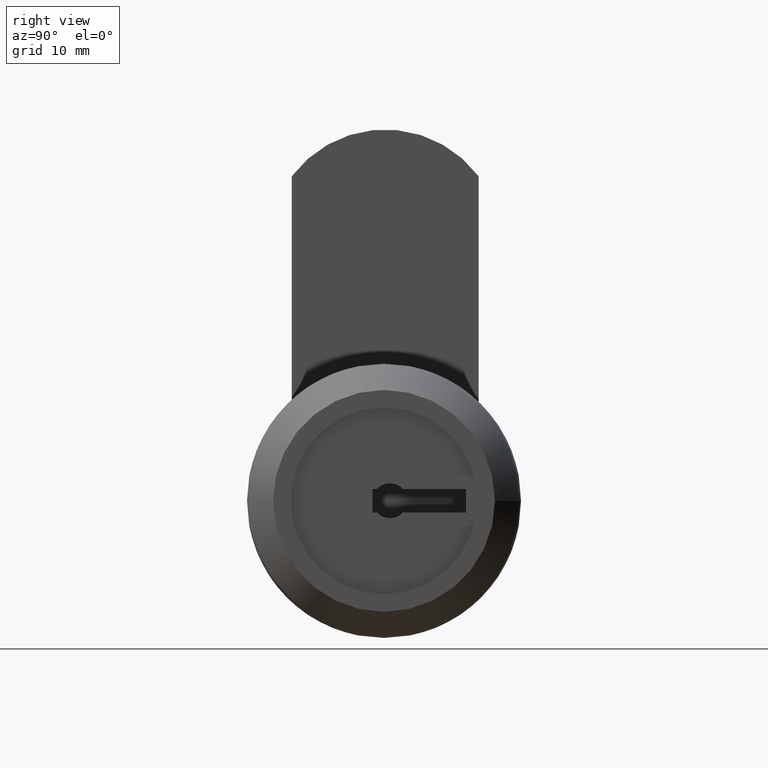
[diagram: clean part render]
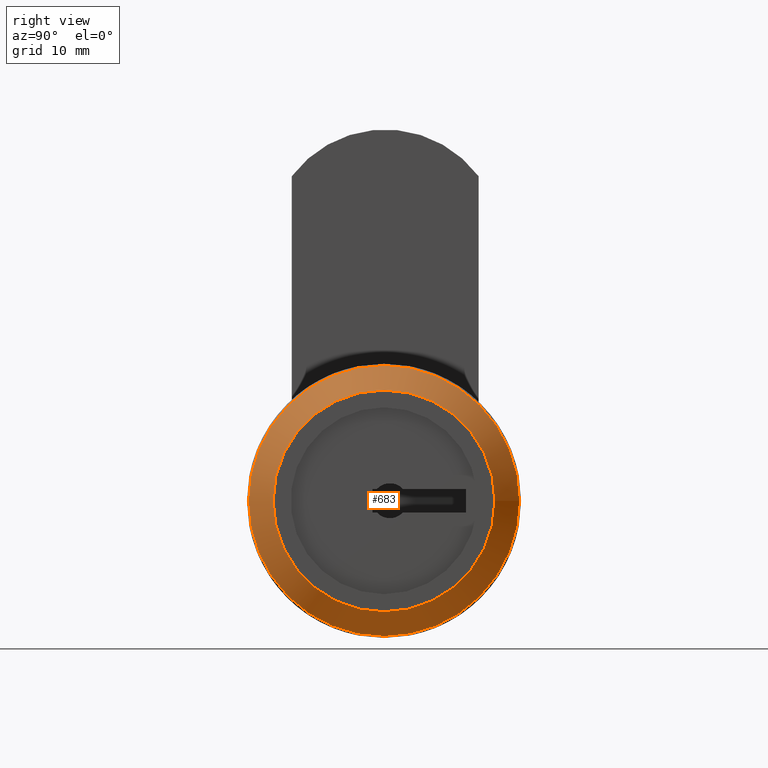
[diagram: same view with one face highlighted and labeled with its STEP entity id]
A machine part, right view. The second image highlights one B-rep face of the part: STEP entity #683.
In plain terms, the highlighted face is a freeform B-spline surface patch.
Its self-contained STEP definition (entity closure, byte-faithful):
#587=CARTESIAN_POINT('',(0.0,9.500000000000028,0.0));
#588=VERTEX_POINT('',#587);
#589=CARTESIAN_POINT('',(0.0,-9.500000000000028,0.0));
#590=VERTEX_POINT('',#589);
#591=CARTESIAN_POINT('',(0.0,0.0,0.0));
#592=DIRECTION('',(1.0,0.0,0.0));
#593=DIRECTION('',(0.0,1.0,0.0));
#594=AXIS2_PLACEMENT_3D('',#591,#592,#593);
#595=CIRCLE('',#594,9.500000000000028);
#596=EDGE_CURVE('',#588,#590,#595,.T.);
#598=CARTESIAN_POINT('',(0.0,0.0,0.0));
#599=DIRECTION('',(1.0,0.0,0.0));
#600=DIRECTION('',(0.0,1.0,0.0));
#601=AXIS2_PLACEMENT_3D('',#598,#599,#600);
#602=CIRCLE('',#601,9.500000000000028);
#603=EDGE_CURVE('',#590,#588,#602,.T.);
#628=CARTESIAN_POINT('',(0.0,9.500000000000028,0.0));
#629=CARTESIAN_POINT('',(0.0,9.500000000000028,9.500000000000028));
#630=CARTESIAN_POINT('',(0.0,0.0,9.500000000000028));
#631=CARTESIAN_POINT('',(0.0,-9.500000000000028,9.500000000000028));
#632=CARTESIAN_POINT('',(0.0,-9.500000000000028,0.0));
#633=CARTESIAN_POINT('',(0.0,-9.500000000000028,-9.500000000000028));
#634=CARTESIAN_POINT('',(0.0,0.0,-9.500000000000028));
#635=CARTESIAN_POINT('',(0.0,9.500000000000028,-9.500000000000028));
#636=CARTESIAN_POINT('',(0.0,9.500000000000028,0.0));
#637=CARTESIAN_POINT('',(-3.485504244572439,11.591302546743464,0.0));
#638=CARTESIAN_POINT('',(-3.485504244572439,11.591302546743464,11.591302546743464));
#639=CARTESIAN_POINT('',(-3.485504244572439,0.0,11.591302546743464));
#640=CARTESIAN_POINT('',(-3.485504244572439,-11.591302546743464,11.591302546743464));
#641=CARTESIAN_POINT('',(-3.485504244572439,-11.591302546743464,0.0));
#642=CARTESIAN_POINT('',(-3.485504244572439,-11.591302546743464,-11.591302546743464));
#643=CARTESIAN_POINT('',(-3.485504244572439,0.0,-11.591302546743464));
#644=CARTESIAN_POINT('',(-3.485504244572439,11.591302546743464,-11.591302546743464));
#645=CARTESIAN_POINT('',(-3.485504244572439,11.591302546743464,0.0));
#653=(BOUNDED_SURFACE()B_SPLINE_SURFACE(2,1,((#628,#637),(#629,#638),(#630,#639),(#631,#640),(#632,#641),(#633,#642),(#634,#643),(#635,#644),(#636,#645)),.UNSPECIFIED.,.T.,.F.,.U.)B_SPLINE_SURFACE_WITH_KNOTS((3,2,2,2,3),(2,2),(0.0,0.250000000000000,0.500000000000000,0.750000000000000,1.0),(0.0,4.064761515876186),.UNSPECIFIED.)GEOMETRIC_REPRESENTATION_ITEM()RATIONAL_B_SPLINE_SURFACE(((1.0,1.0),(0.707106781186548,0.707106781186548),(1.0,1.0),(0.707106781186548,0.707106781186548),(1.0,1.0),(0.707106781186548,0.707106781186548),(1.0,1.0),(0.707106781186548,0.707106781186548),(1.0,1.0)))REPRESENTATION_ITEM('')SURFACE());
#654=CARTESIAN_POINT('',(-3.485504244572894,11.591302546742725,0.0));
#655=VERTEX_POINT('',#654);
#656=CARTESIAN_POINT('',(0.0,9.500000000000028,0.0));
#657=DIRECTION('',(-0.857492925712547,0.514495755427521,0.0));
#658=VECTOR('',#657,4.064761515876186);
#659=LINE('',#656,#658);
#660=EDGE_CURVE('',#588,#655,#659,.T.);
#661=ORIENTED_EDGE('',*,*,#660,.T.);
#662=CARTESIAN_POINT('',(-3.485504244572894,-11.591302546742725,0.0));
#663=VERTEX_POINT('',#662);
#664=CARTESIAN_POINT('',(-3.485504244572894,0.0,0.0));
#665=DIRECTION('',(1.0,0.0,0.0));
#666=DIRECTION('',(0.0,1.0,0.0));
#667=AXIS2_PLACEMENT_3D('',#664,#665,#666);
#668=CIRCLE('',#667,11.591302546742725);
#669=EDGE_CURVE('',#655,#663,#668,.T.);
#670=ORIENTED_EDGE('',*,*,#669,.T.);
#671=CARTESIAN_POINT('',(-3.485504244572894,0.0,0.0));
#672=DIRECTION('',(1.0,0.0,0.0));
#673=DIRECTION('',(0.0,1.0,0.0));
#674=AXIS2_PLACEMENT_3D('',#671,#672,#673);
#675=CIRCLE('',#674,11.591302546742725);
#676=EDGE_CURVE('',#663,#655,#675,.T.);
#677=ORIENTED_EDGE('',*,*,#676,.T.);
#678=ORIENTED_EDGE('',*,*,#660,.F.);
#679=ORIENTED_EDGE('',*,*,#603,.F.);
#680=ORIENTED_EDGE('',*,*,#596,.F.);
#681=EDGE_LOOP('',(#661,#670,#677,#678,#679,#680));
#682=FACE_OUTER_BOUND('',#681,.T.);
#683=ADVANCED_FACE('',(#682),#653,.F.);